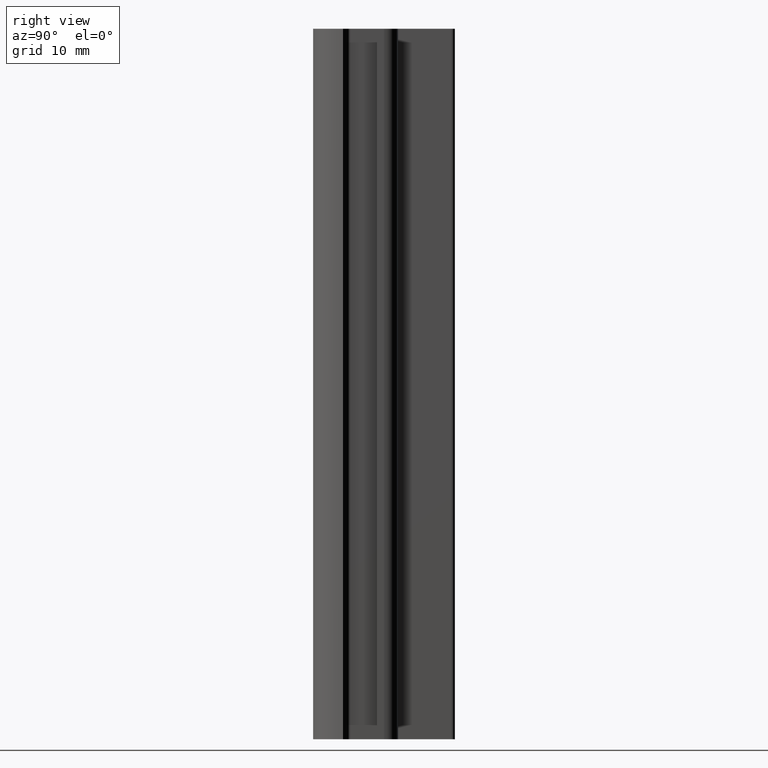
[diagram: clean part render]
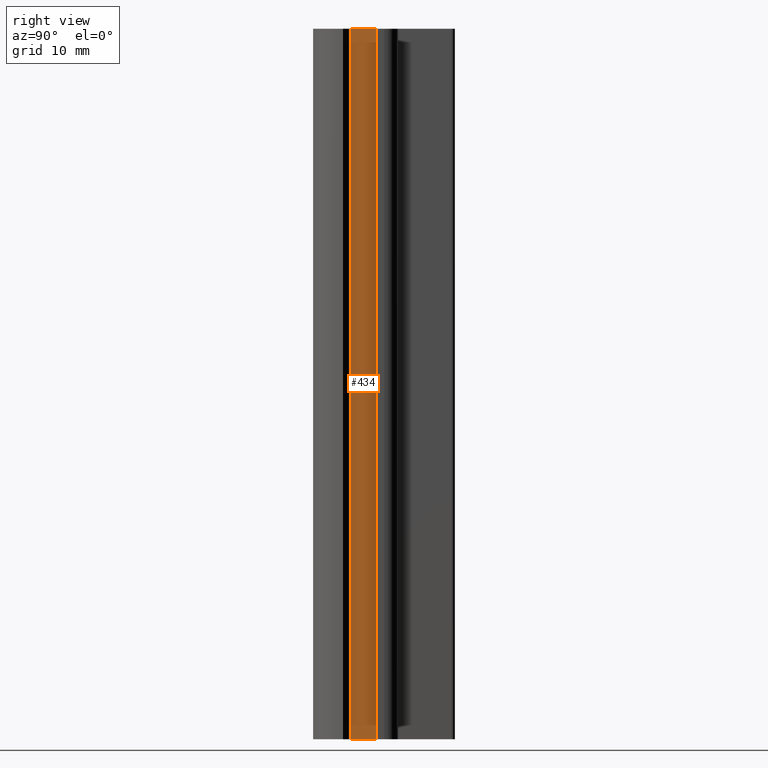
[diagram: same view with one face highlighted and labeled with its STEP entity id]
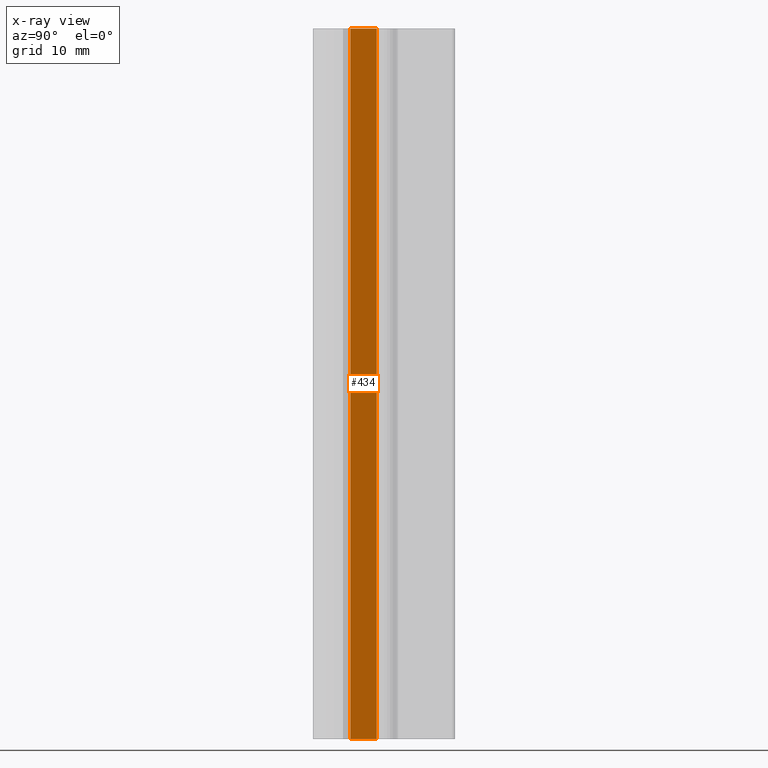
[diagram: x-ray of the same camera — body ghosted, the highlighted face saturated]
A machine part, right view. The second image highlights one B-rep face of the part: STEP entity #434.
The next image is the same camera in x-ray: the body ghosted, the highlighted face saturated — about 0% of this face is hidden behind the body in this view.
In plain terms, the highlighted planar face has unit normal (1, 0, 0).
Its self-contained STEP definition (entity closure, byte-faithful):
#18=PLANE('',#463);
#36=FACE_OUTER_BOUND('',#59,.T.);
#59=EDGE_LOOP('',(#310,#311,#312,#313));
#86=LINE('',#639,#135);
#88=LINE('',#645,#137);
#89=LINE('',#647,#138);
#90=LINE('',#648,#139);
#135=VECTOR('',#512,100.);
#137=VECTOR('',#518,3.71132486540519);
#138=VECTOR('',#519,100.);
#139=VECTOR('',#520,3.71132486540519);
#200=VERTEX_POINT('',#636);
#201=VERTEX_POINT('',#638);
#203=VERTEX_POINT('',#644);
#204=VERTEX_POINT('',#646);
#243=EDGE_CURVE('',#200,#201,#86,.T.);
#246=EDGE_CURVE('',#203,#200,#88,.T.);
#247=EDGE_CURVE('',#203,#204,#89,.T.);
#248=EDGE_CURVE('',#201,#204,#90,.T.);
#310=ORIENTED_EDGE('',*,*,#243,.F.);
#311=ORIENTED_EDGE('',*,*,#246,.F.);
#312=ORIENTED_EDGE('',*,*,#247,.T.);
#313=ORIENTED_EDGE('',*,*,#248,.F.);
#434=ADVANCED_FACE('',(#36),#18,.T.);
#463=AXIS2_PLACEMENT_3D('',#643,#516,#517);
#512=DIRECTION('',(0.,0.,1.));
#516=DIRECTION('center_axis',(1.,0.,0.));
#517=DIRECTION('ref_axis',(0.,1.,0.));
#518=DIRECTION('',(0.,-1.,0.));
#519=DIRECTION('',(0.,0.,1.));
#520=DIRECTION('',(0.,1.,0.));
#636=CARTESIAN_POINT('',(4.2,-3.71132486540519,0.));
#638=CARTESIAN_POINT('',(4.2,-3.71132486540519,100.));
#639=CARTESIAN_POINT('',(4.2,-3.71132486540519,0.));
#643=CARTESIAN_POINT('Origin',(4.2,-4.,0.));
#644=CARTESIAN_POINT('',(4.2,0.,0.));
#645=CARTESIAN_POINT('',(4.2,0.,0.));
#646=CARTESIAN_POINT('',(4.2,0.,100.));
#647=CARTESIAN_POINT('',(4.2,0.,0.));
#648=CARTESIAN_POINT('',(4.2,0.,100.));